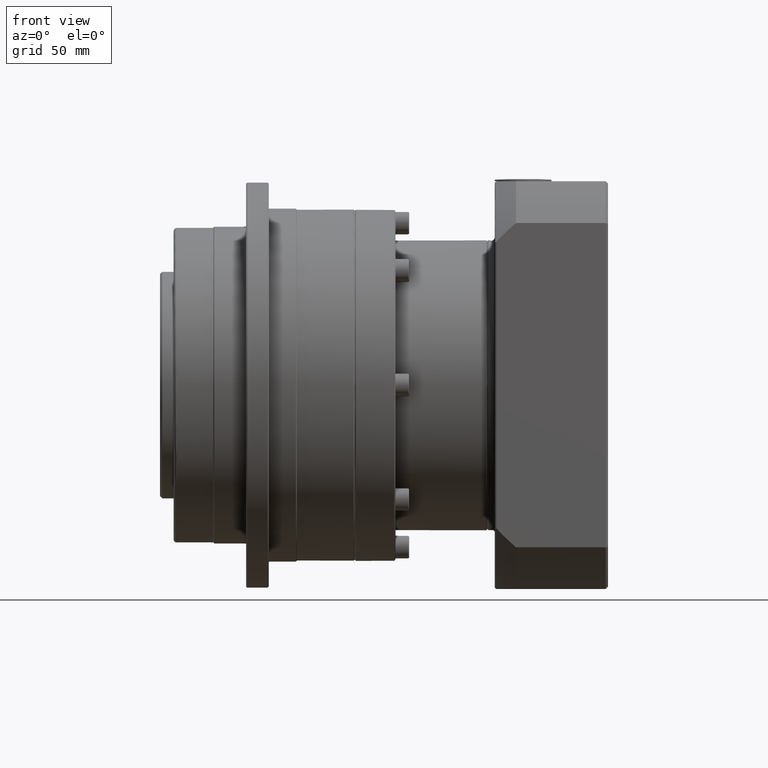
[diagram: clean part render]
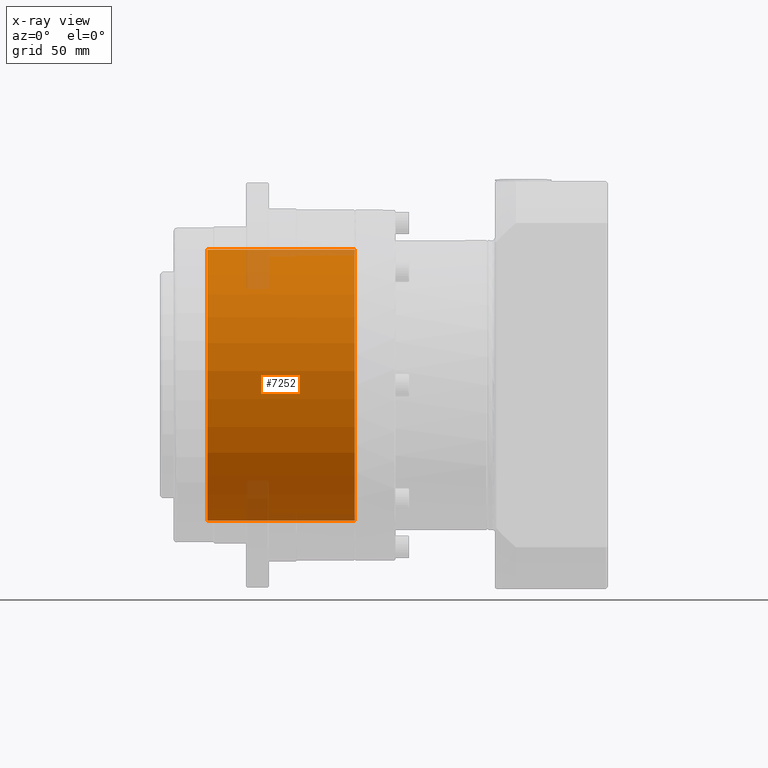
[diagram: x-ray — body ghosted, one internal face saturated and labeled with its STEP entity id]
A machine part, front view, then the same camera in x-ray: the body is ghosted and one INTERNAL B-rep face — a face not visible from any outside direction — is saturated and labeled: STEP entity #7252.
In plain terms, the highlighted cylindrical surface (bore or boss wall) has radius 59.8 mm, axis along (-1, -0, -0).
Its self-contained STEP definition (entity closure, byte-faithful):
#1407=CYLINDRICAL_SURFACE('',#8166,59.8);
#1702=FACE_BOUND('',#2985,.T.);
#2198=FACE_OUTER_BOUND('',#2984,.T.);
#2984=EDGE_LOOP('',(#6530));
#2985=EDGE_LOOP('',(#6531));
#3394=CIRCLE('',#8165,59.8);
#3395=CIRCLE('',#8167,59.8);
#4035=VERTEX_POINT('',#12945);
#4036=VERTEX_POINT('',#12948);
#4871=EDGE_CURVE('',#4035,#4035,#3394,.T.);
#4872=EDGE_CURVE('',#4036,#4036,#3395,.T.);
#6530=ORIENTED_EDGE('',*,*,#4872,.T.);
#6531=ORIENTED_EDGE('',*,*,#4871,.F.);
#7252=ADVANCED_FACE('',(#2198,#1702),#1407,.F.);
#8165=AXIS2_PLACEMENT_3D('',#12946,#10210,#10211);
#8166=AXIS2_PLACEMENT_3D('',#12947,#10212,#10213);
#8167=AXIS2_PLACEMENT_3D('',#12949,#10214,#10215);
#10210=DIRECTION('center_axis',(-1.,-4.55531587302279E-16,-1.7344627320079E-15));
#10211=DIRECTION('ref_axis',(-1.7344627320079E-15,8.27232610306307E-16,
1.));
#10212=DIRECTION('center_axis',(-1.,-4.55531587302279E-16,-1.7344627320079E-15));
#10213=DIRECTION('ref_axis',(-1.7344627320079E-15,8.27232610306307E-16,
1.));
#10214=DIRECTION('center_axis',(-1.,-4.55531587302279E-16,-1.7344627320079E-15));
#10215=DIRECTION('ref_axis',(-1.7344627320079E-15,8.27232610306307E-16,
1.));
#12945=CARTESIAN_POINT('',(-140.785750061904,108.296351812799,-97.4816074776303));
#12946=CARTESIAN_POINT('Origin',(-140.785750061904,108.296351812799,-37.6816074776303));
#12947=CARTESIAN_POINT('Origin',(-140.785750061904,108.296351812799,-37.6816074776303));
#12948=CARTESIAN_POINT('',(-205.785750061904,108.296351812799,-97.4816074776304));
#12949=CARTESIAN_POINT('Origin',(-205.785750061904,108.296351812799,-37.6816074776304));